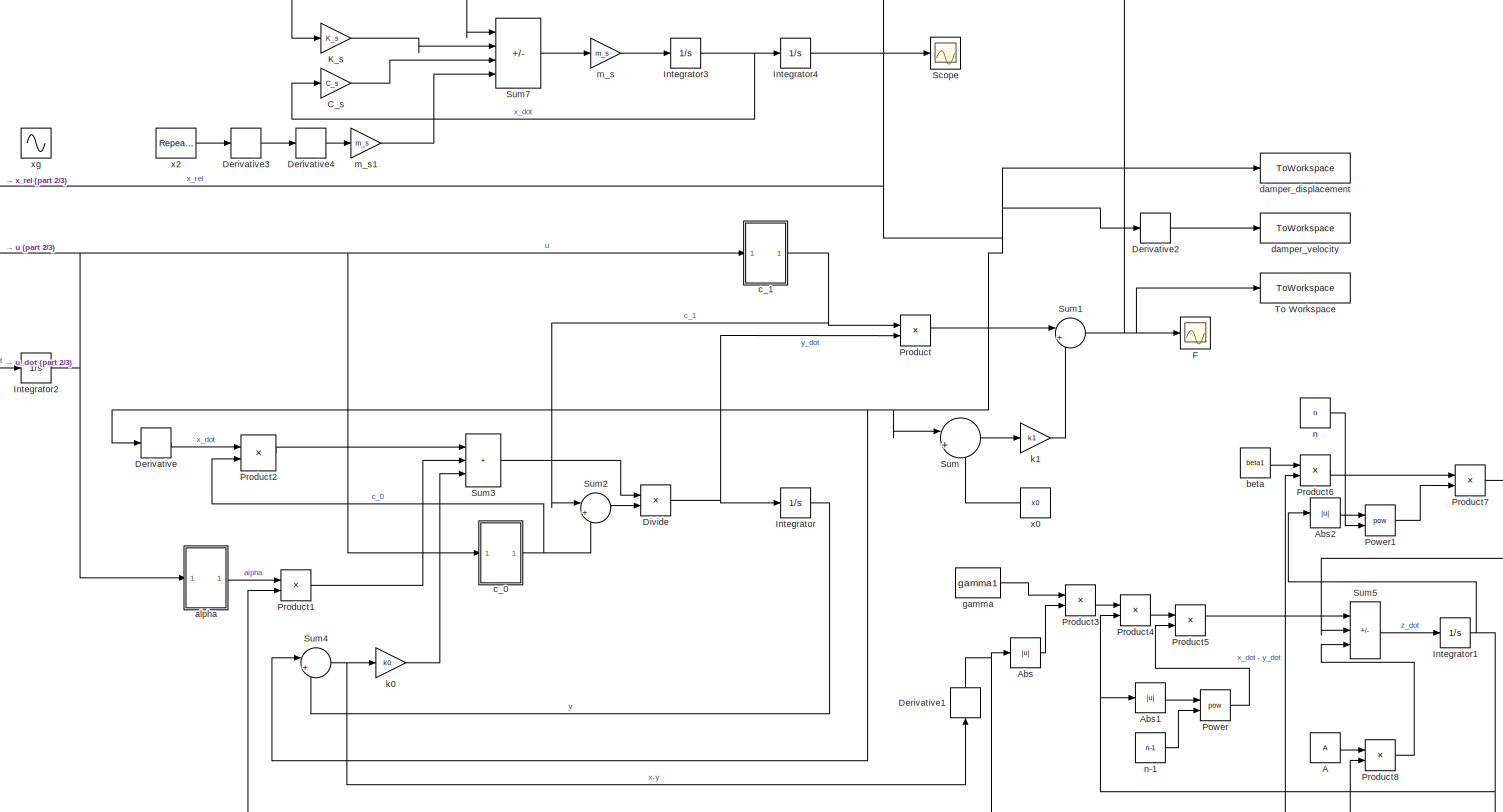
[diagram: root canvas - part 1/3, most of the canvas]
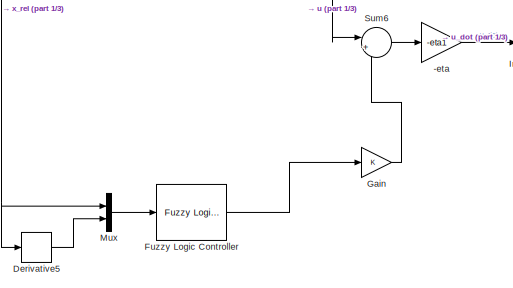
[diagram: root canvas - part 2/3, middle left region]
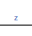
[diagram: root canvas - part 3/3, bottom right region]
MODEL slx_6e32b96db918
KIND model
CONFIG AbsTol = auto
CONFIG EnableMultiTasking = off
CONFIG FixedStep = auto
CONFIG MaxStep = auto
CONFIG MinStep = auto
CONFIG RelTol = 1e-3
CONFIG SampleTimeConstraint = Unconstrained
CONFIG Solver = FixedStepAuto
CONFIG SolverName = FixedStepAuto
CONFIG StartTime = 0.0
CONFIG StopTime = 10.0
BLOCK [Gain] -eta
  Gain = -eta1
BLOCK [Constant] A
  Value = A
BLOCK [Abs] Abs
  SaturateOnIntegerOverflow = off
BLOCK [Abs] Abs1
  SaturateOnIntegerOverflow = off
BLOCK [Abs] Abs2
  SaturateOnIntegerOverflow = off
BLOCK [Gain] C_s
  Gain = C_s
BLOCK [Derivative] Derivative
BLOCK [Derivative] Derivative1
  NameLocation = right
BLOCK [Derivative] Derivative2
BLOCK [Derivative] Derivative3
BLOCK [Derivative] Derivative4
BLOCK [Derivative] Derivative5
BLOCK [Product] Divide
  Inputs = */
  Ports = [2, 1]
BLOCK [Scope] F
  Floating = off
  NumInputPorts = 1
  Ports = [1]
  ScopeSpecificationString = Simulink.scopes.TimeScopeBlockCfg('CurrentConfiguration', extmgr.ConfigurationSet(extmgr.Configuration('Core','General UI',true),extmgr.Configuration('Core','Source UI',true),extmgr.Configuration('Sources','WiredSimulink',true,'DataLoggingVariableName','ScopeData1'),extmgr.Configuration('Visuals','Time Domain',true,'SerializedDisplays',{struct('MinYLimReal','-81.5','MaxYLimReal','-61.5','YLabelRea...<+1347ch>
BLOCK [Reference] Fuzzy Logic Controller  REF=fuzblock/Fuzzy Logic   (lib defined in mdl_858b3b3e7478)
Controller
  Ports = [1, 1]
  SourceBlock = fuzblock/Fuzzy Logic \nController
  SourceProductBaseCode = FL
  SourceType = Fuzzy Inference System
BLOCK [Gain] Gain
BLOCK [Integrator] Integrator
  Ports = [1, 1]
BLOCK [Integrator] Integrator1
  Ports = [1, 1]
BLOCK [Integrator] Integrator2
  Ports = [1, 1]
BLOCK [Integrator] Integrator3
  InitialCondition = 0.001
  Ports = [1, 1]
BLOCK [Integrator] Integrator4
  Ports = [1, 1]
BLOCK [Gain] K_s
  Gain = K_s
BLOCK [Mux] Mux
  DisplayOption = bar
  Inputs = 2
  Ports = [2, 1]
BLOCK [Math] Power
  Operator = pow
  Ports = [2, 1]
BLOCK [Math] Power1
  Operator = pow
  Ports = [2, 1]
BLOCK [Product] Product
  Ports = [2, 1]
BLOCK [Product] Product1
  Ports = [2, 1]
BLOCK [Product] Product2
  Ports = [2, 1]
BLOCK [Product] Product3
  Ports = [2, 1]
BLOCK [Product] Product4
  Ports = [2, 1]
BLOCK [Product] Product5
  Ports = [2, 1]
BLOCK [Product] Product6
  Ports = [2, 1]
BLOCK [Product] Product7
  Ports = [2, 1]
BLOCK [Product] Product8
  Ports = [2, 1]
BLOCK [Scope] Scope
  Floating = off
  NumInputPorts = 1
  Ports = [1]
  ScopeSpecificationString = Simulink.scopes.TimeScopeBlockCfg('CurrentConfiguration', extmgr.ConfigurationSet(extmgr.Configuration('Core','General UI',true),extmgr.Configuration('Core','Source UI',true),extmgr.Configuration('Sources','WiredSimulink',true),extmgr.Configuration('Visuals','Time Domain',true,'SerializedDisplays',{struct('MinYLimReal','-1661253471493171200.00000','MaxYLimReal','184583719054796768.00000','YLabelRe...<+1465ch>
BLOCK [Sum] Sum
  Inputs = |+-
  Ports = [2, 1]
BLOCK [Sum] Sum1
  Inputs = |++
  Ports = [2, 1]
BLOCK [Sum] Sum2
  Inputs = |++
  Ports = [2, 1]
BLOCK [Sum] Sum3
  IconShape = rectangular
  Inputs = |+++
  Ports = [3, 1]
BLOCK [Sum] Sum4
  Inputs = |+-
  Ports = [2, 1]
BLOCK [Sum] Sum5
  IconShape = rectangular
  Inputs = |--+
  Ports = [3, 1]
BLOCK [Sum] Sum6
  Inputs = |+-
  Ports = [2, 1]
BLOCK [Sum] Sum7
  IconShape = rectangular
  Inputs = |----
  Ports = [4, 1]
BLOCK [ToWorkspace] To Workspace
  FixptAsFi = on
  MaxDataPoints = inf
  Ports = [1]
  SampleTime = -1
  VariableName = damper_force
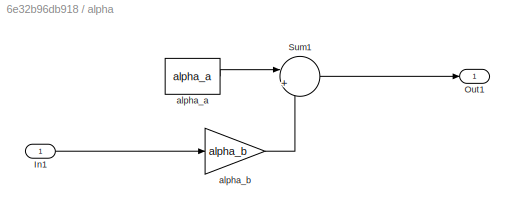
BLOCK [SubSystem] alpha
  Ports = [1, 1]
  RequestExecContextInheritance = off
BLOCK [Inport] alpha/In1
  IconDisplay = Signal name
BLOCK [Outport] alpha/Out1
  IconDisplay = Signal name
BLOCK [Sum] alpha/Sum1
  Inputs = |++
  Ports = [2, 1]
BLOCK [Constant] alpha/alpha_a
  Value = alpha_a
BLOCK [Gain] alpha/alpha_b
  Gain = alpha_b
BLOCK [Constant] beta
  Value = beta1
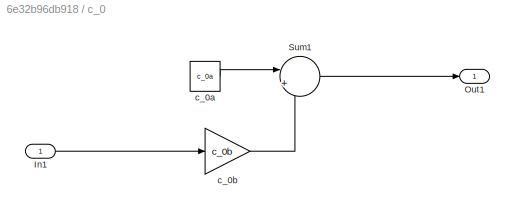
BLOCK [SubSystem] c_0
  Ports = [1, 1]
  RequestExecContextInheritance = off
BLOCK [Inport] c_0/In1
  IconDisplay = Signal name
BLOCK [Outport] c_0/Out1
  IconDisplay = Signal name
BLOCK [Sum] c_0/Sum1
  Inputs = |++
  Ports = [2, 1]
BLOCK [Constant] c_0/c_0a
  Value = c_0a
BLOCK [Gain] c_0/c_0b
  Gain = c_0b
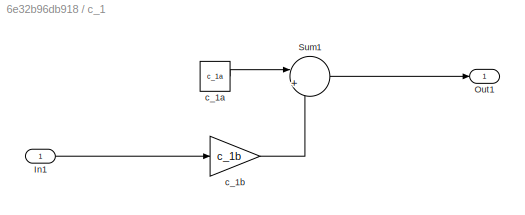
BLOCK [SubSystem] c_1
  Ports = [1, 1]
  RequestExecContextInheritance = off
BLOCK [Inport] c_1/In1
  IconDisplay = Signal name
BLOCK [Outport] c_1/Out1
  IconDisplay = Signal name
BLOCK [Sum] c_1/Sum1
  Inputs = |++
  Ports = [2, 1]
BLOCK [Constant] c_1/c_1a
  Value = c_1a
BLOCK [Gain] c_1/c_1b
  Gain = c_1b
BLOCK [ToWorkspace] damper_displacement
  FixptAsFi = on
  MaxDataPoints = inf
  Ports = [1]
  SampleTime = -1
  VariableName = damper_displacement
BLOCK [ToWorkspace] damper_velocity
  FixptAsFi = on
  MaxDataPoints = inf
  Ports = [1]
  SampleTime = -1
  VariableName = damper_velocity
BLOCK [Constant] gamma
  Value = gamma1
BLOCK [Gain] k0
  Gain = k0
BLOCK [Gain] k1
  Gain = k1
BLOCK [Gain] m_s
  Gain = m_s
BLOCK [Gain] m_s1
  Gain = m_s
BLOCK [Constant] n
  Value = n
BLOCK [Constant] n-1
  Value = n-1
BLOCK [Constant] x0
  NameLocation = top
  Value = x0
BLOCK [Reference] x2  REF=simulink/Sources/Repeating
Sequence
  Ports = [0, 1]
  SourceBlock = simulink/Sources/Repeating\nSequence
  SourceProductBaseCode = SL
  SourceType = Repeating table
BLOCK [Sin] xg
  Amplitude = 0.75
  Frequency = 2*pi*4
  Ports = [0, 1]
  SampleTime = 0
LINE -eta:1 -> Integrator2:1
LINE A:1 -> Product8:1
LINE Abs1:1 -> Power:1
LINE Abs2:1 -> Power1:1
LINE Abs:1 -> Product3:2
LINE C_s:1 -> Sum7:3
NET Derivative1:1 -> Abs:1, Product6:2, Product8:2
LINE Derivative2:1 -> damper_velocity:1
LINE Derivative3:1 -> Derivative4:1
LINE Derivative4:1 -> m_s1:1
LINE Derivative5:1 -> Mux:2
LINE Derivative:1 -> Product2:1
NET Divide:1 -> Integrator:1, Product:2
LINE Fuzzy Logic Controller:1 -> Gain:1
LINE Gain:1 -> Sum6:2
NET Integrator1:1 -> Abs1:1, Abs2:1, Product1:2, Product4:2
NET Integrator2:1 -> Sum6:1, alpha:1, c_0:1, c_1:1
NET Integrator3:1 -> C_s:1, Integrator4:1
NET Integrator4:1 -> Derivative2:1, Derivative5:1, Derivative:1, K_s:1, Mux:1, Scope:1, Sum4:1, Sum:1, damper_displacement:1
LINE Integrator:1 -> Sum4:2
LINE K_s:1 -> Sum7:2
LINE Mux:1 -> Fuzzy Logic Controller:1
LINE Power1:1 -> Product7:2
LINE Power:1 -> Product5:2
LINE Product1:1 -> Sum3:2
LINE Product2:1 -> Sum3:1
LINE Product3:1 -> Product4:1
LINE Product4:1 -> Product5:1
LINE Product5:1 -> Sum5:1
LINE Product6:1 -> Product7:1
LINE Product7:1 -> Sum5:2
LINE Product8:1 -> Sum5:3
LINE Product:1 -> Sum1:1
NET Sum1:1 -> F:1, Sum7:1, To Workspace:1
LINE Sum2:1 -> Divide:2
LINE Sum3:1 -> Divide:1
NET Sum4:1 -> Derivative1:1, k0:1
LINE Sum5:1 -> Integrator1:1
LINE Sum6:1 -> -eta:1
LINE Sum7:1 -> m_s:1
LINE Sum:1 -> k1:1
LINE alpha/In1:1 -> alpha/alpha_b:1
LINE alpha/Sum1:1 -> alpha/Out1:1
LINE alpha/alpha_a:1 -> alpha/Sum1:1
LINE alpha/alpha_b:1 -> alpha/Sum1:2
LINE alpha:1 -> Product1:1
LINE beta:1 -> Product6:1
LINE c_0/In1:1 -> c_0/c_0b:1
LINE c_0/Sum1:1 -> c_0/Out1:1
LINE c_0/c_0a:1 -> c_0/Sum1:1
LINE c_0/c_0b:1 -> c_0/Sum1:2
NET c_0:1 -> Product2:2, Sum2:2
LINE c_1/In1:1 -> c_1/c_1b:1
LINE c_1/Sum1:1 -> c_1/Out1:1
LINE c_1/c_1a:1 -> c_1/Sum1:1
LINE c_1/c_1b:1 -> c_1/Sum1:2
NET c_1:1 -> Product:1, Sum2:1
LINE gamma:1 -> Product3:1
LINE k0:1 -> Sum3:3
LINE k1:1 -> Sum1:2
LINE m_s1:1 -> Sum7:4
LINE m_s:1 -> Integrator3:1
LINE n-1:1 -> Power:2
LINE n:1 -> Power1:2
LINE x0:1 -> Sum:2
LINE x2:1 -> Derivative3:1
note: NET lines group one-source signal fan-out (src -> all destinations, sorted); 1:1 wires keep LINE
